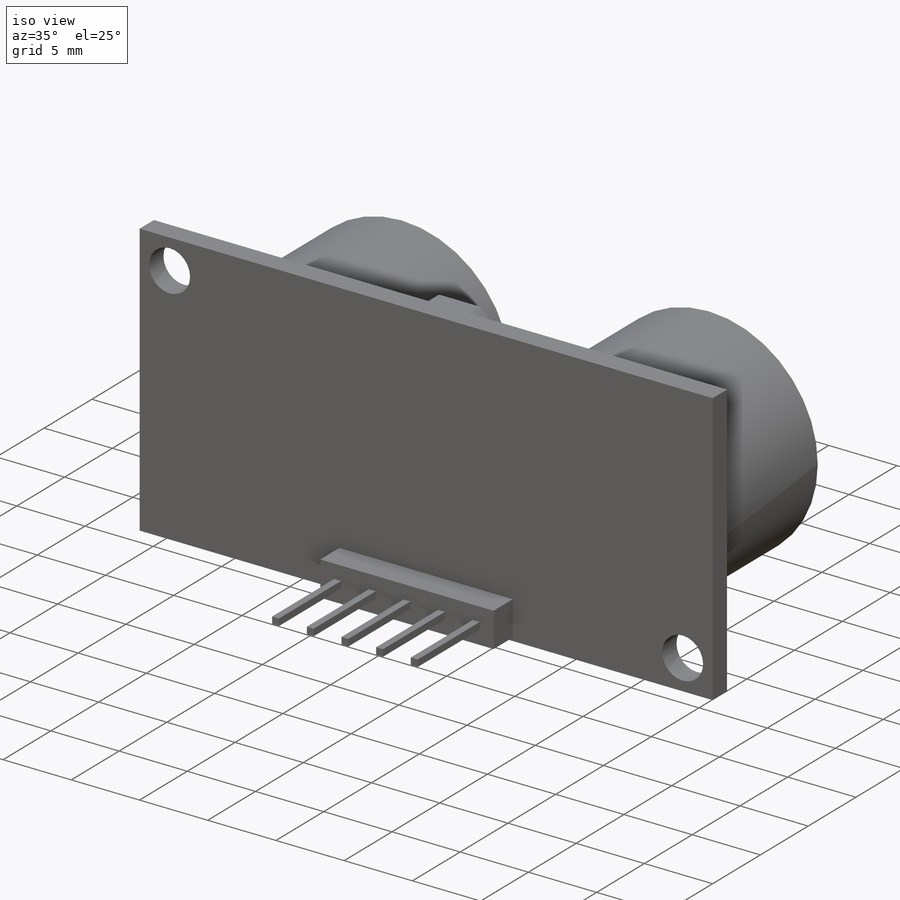
[diagram: iso view]
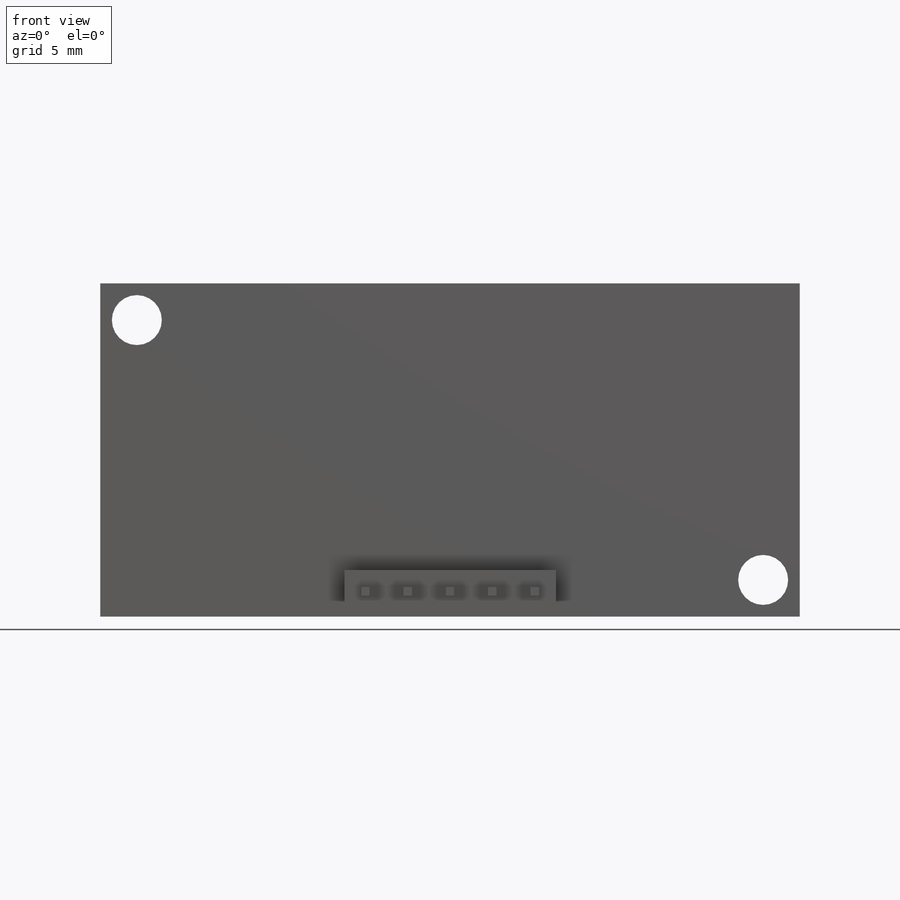
[diagram: front view]
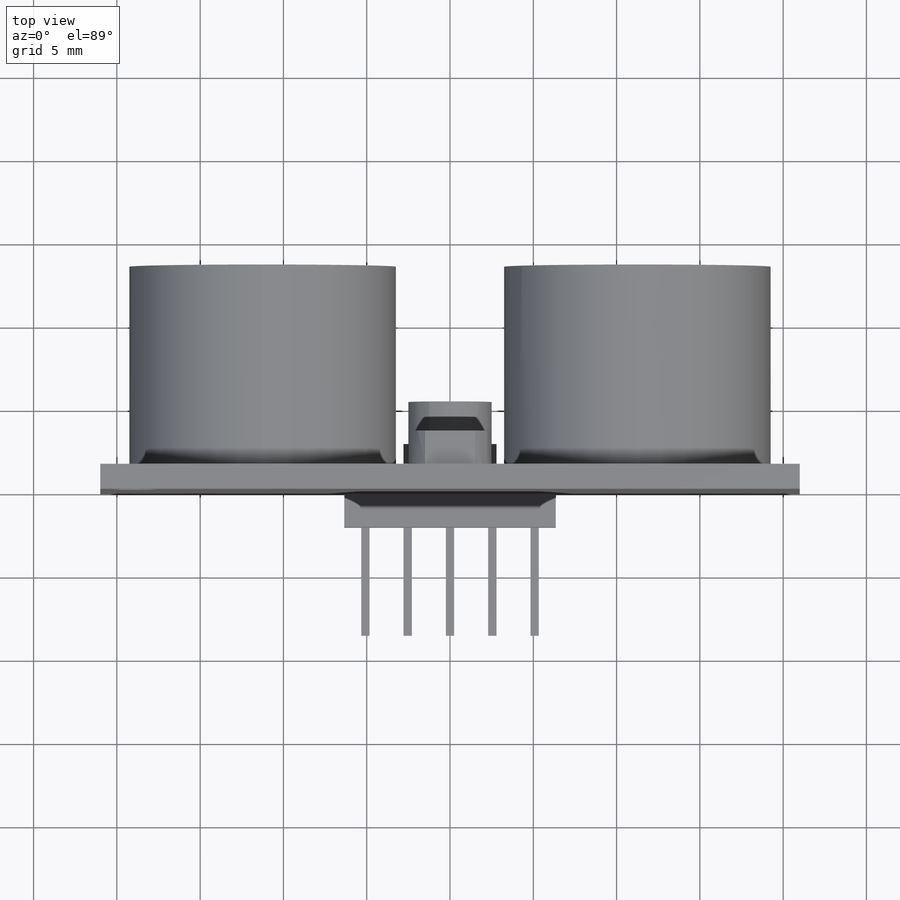
[diagram: top view]
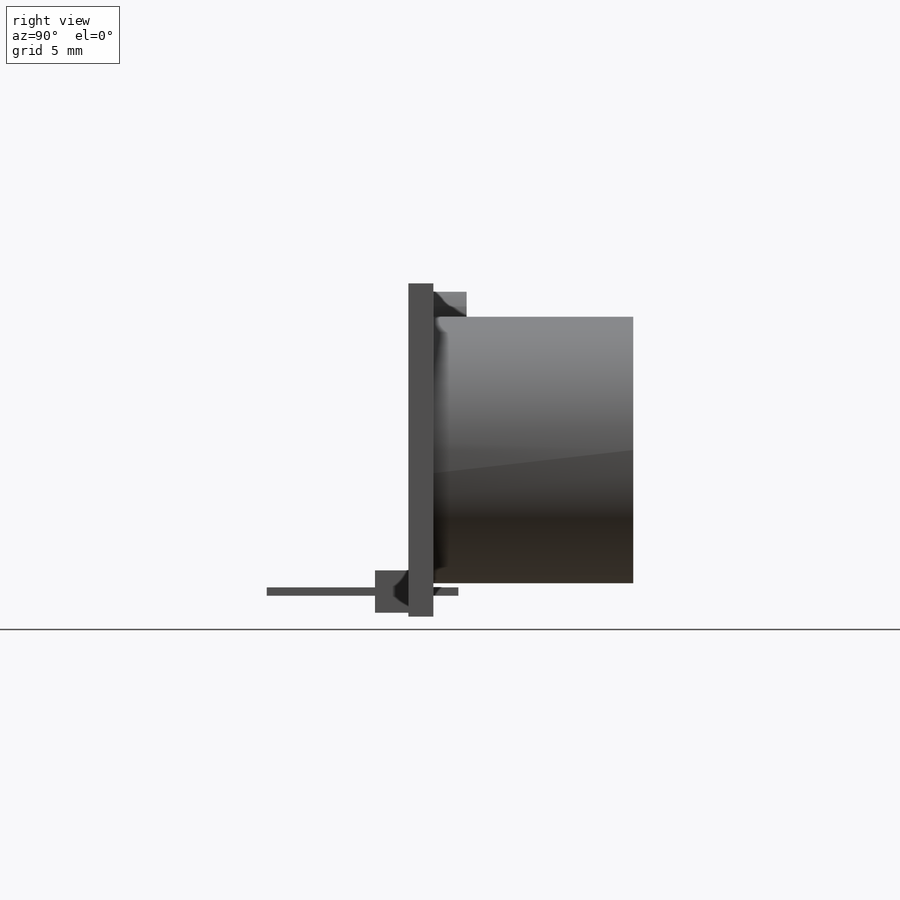
[diagram: right view]
SOLIDWORKS PART (.sldprt)
format: sldprt  version: not decoded by parser v0  size: 311,808 bytes
history: native  units: mm
features: sketch x8, extrude x6, plane x3, material x1, cut_extrude x1 (+13 scaffold rows collapsed)
feature tree (32):
  scaffold x13  (default folders/planes/origin — collapsed)
  material  "Material <sin especificar>"
  plane  "Alzado"
  plane  "Planta"
  plane  "Vista lateral"
  sketch  "Croquis1"  dims[D3=3.0mm D4=3.0mm D1=20.0mm D2=42.0mm D5=37.6mm D6=15.6mm D7=2.2mm]
  extrude  "Saliente-Extruir1"  Depth=1.5mm
  sketch  "Croquis2"  dims[D1=16.0mm D2=38.5mm]
  extrude  "Saliente-Extruir2"  Depth=12mm
  sketch  "Croquis3"  dims[D1=13.0mm]
  cut_extrude  "Cortar-Extruir1"  Depth=0.5mm
  sketch  "Croquis4"  dims[D1=2.54mm D2=1.5mm]
  sketch  "Croquis5"  dims[D1=0.5mm]
  extrude  "Saliente-Extruir3"  Depth=3mm
  sketch  "Croquis6"  dims[D1=12.7mm D2=2.54mm]
  extrude  "Saliente-Extruir4"  Depth=2mm
  sketch  "Croquis7"  dims[D1=5.0mm D2=3.0mm]
  extrude  "Saliente-Extruir5"  Depth=4mm
  sketch  "Croquis8"  dims[D1=5.0mm D2=3.0mm]
  extrude  "Saliente-Extruir6"  Depth=2mm
decode coverage: 15 of 15 modeling features carry decoded parameters
note: suppression state not decoded; provenance and decode notes live in map.json
